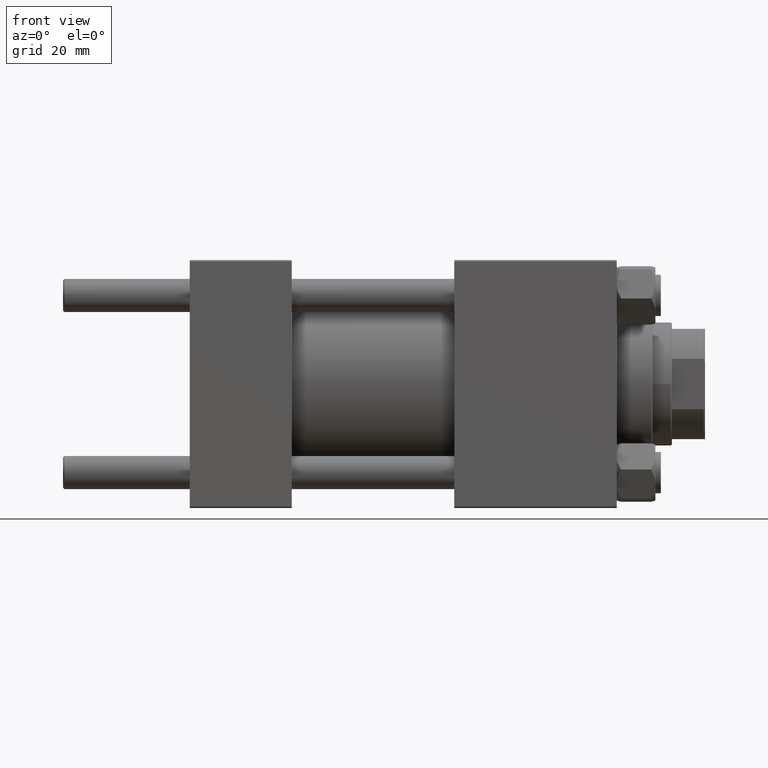
[diagram: clean part render]
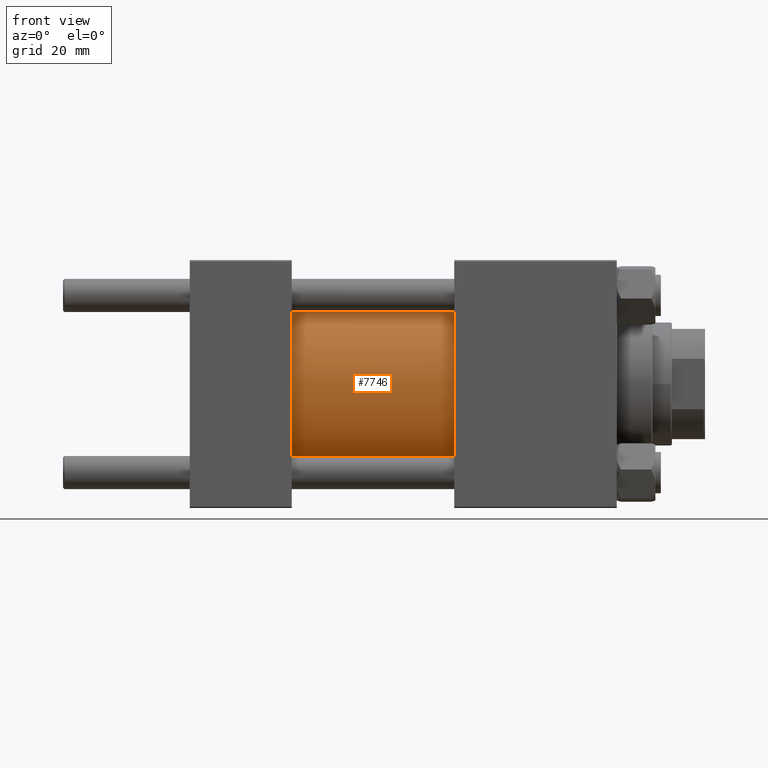
[diagram: same view with one face highlighted and labeled with its STEP entity id]
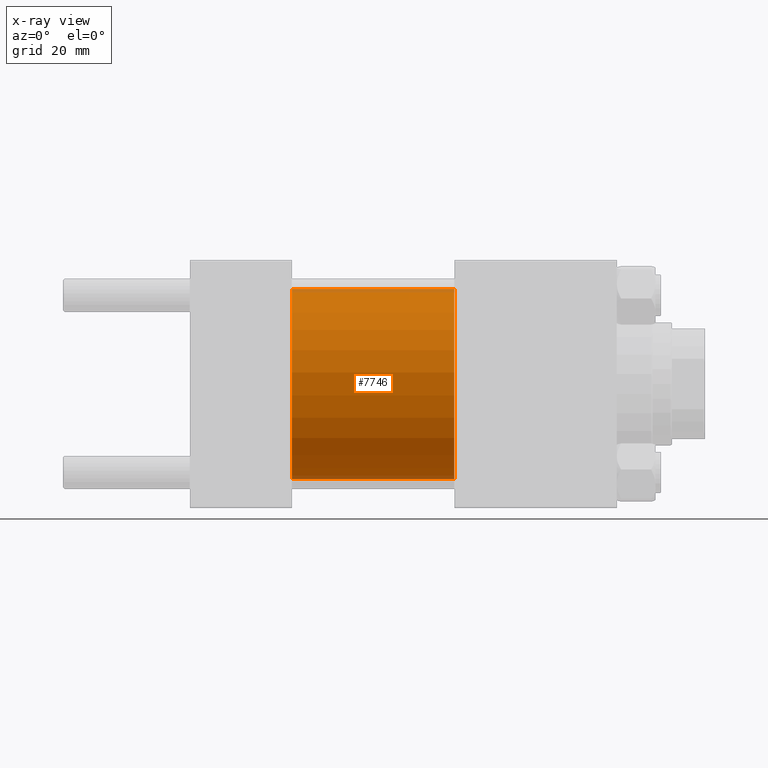
[diagram: x-ray of the same camera — body ghosted, the highlighted face saturated]
A machine part, front view. The second image highlights one B-rep face of the part: STEP entity #7746.
The next image is the same camera in x-ray: the body ghosted, the highlighted face saturated — about 4% of this face is hidden behind the body in this view.
In plain terms, the highlighted cylindrical surface (partial cylindrical patch) has radius 34.5 mm, axis along (-1, -0, -0).
Its self-contained STEP definition (entity closure, byte-faithful):
#1745 = AXIS2_PLACEMENT_3D ( 'NONE', #41243, #24439, #31986 ) ;
#2329 = CARTESIAN_POINT ( 'NONE',  ( 96.00000000000000000, 0.000000000000000000, 0.000000000000000000 ) ) ;
#3355 = VECTOR ( 'NONE', #13272, 1000.000000000000000 ) ;
#4701 = EDGE_CURVE ( 'NONE', #15768, #10659, #7326, .T. ) ;
#5261 = CYLINDRICAL_SURFACE ( 'NONE', #1745, 34.49999999999999289 ) ;
#6306 = AXIS2_PLACEMENT_3D ( 'NONE', #23471, #8111, #49010 ) ;
#6869 = EDGE_CURVE ( 'NONE', #10659, #26341, #32912, .T. ) ;
#7326 = CIRCLE ( 'NONE', #46742, 34.49999999999999289 ) ;
#7746 = ADVANCED_FACE ( 'NONE', ( #31745 ), #5261, .T. ) ;
#8111 = DIRECTION ( 'NONE',  ( 1.000000000000000000, -0.000000000000000000, 0.000000000000000000 ) ) ;
#8943 = LINE ( 'NONE', #35659, #48334 ) ;
#10659 = VERTEX_POINT ( 'NONE', #47518 ) ;
#13045 = EDGE_CURVE ( 'NONE', #44306, #26341, #47354, .T. ) ;
#13207 = EDGE_LOOP ( 'NONE', ( #28844, #32983, #14508, #28621 ) ) ;
#13272 = DIRECTION ( 'NONE',  ( -1.000000000000000000, -0.000000000000000000, -0.000000000000000000 ) ) ;
#14508 = ORIENTED_EDGE ( 'NONE', *, *, #19193, .T. ) ;
#15768 = VERTEX_POINT ( 'NONE', #19117 ) ;
#16012 = DIRECTION ( 'NONE',  ( -1.000000000000000000, -0.000000000000000000, -0.000000000000000000 ) ) ;
#16628 = CARTESIAN_POINT ( 'NONE',  ( 37.00000000000000000, 0.000000000000000000, 34.49999999999999289 ) ) ;
#19117 = CARTESIAN_POINT ( 'NONE',  ( 96.00000000000000000, 0.000000000000000000, 34.49999999999999289 ) ) ;
#19193 = EDGE_CURVE ( 'NONE', #15768, #44306, #8943, .T. ) ;
#23471 = CARTESIAN_POINT ( 'NONE',  ( 37.00000000000000000, 0.000000000000000000, 0.000000000000000000 ) ) ;
#24439 = DIRECTION ( 'NONE',  ( -1.000000000000000000, -0.000000000000000000, -0.000000000000000000 ) ) ;
#26341 = VERTEX_POINT ( 'NONE', #30202 ) ;
#28621 = ORIENTED_EDGE ( 'NONE', *, *, #13045, .T. ) ;
#28844 = ORIENTED_EDGE ( 'NONE', *, *, #6869, .F. ) ;
#30202 = CARTESIAN_POINT ( 'NONE',  ( 37.00000000000000000, 4.225031457058367344E-15, -34.49999999999999289 ) ) ;
#31745 = FACE_OUTER_BOUND ( 'NONE', #13207, .T. ) ;
#31986 = DIRECTION ( 'NONE',  ( 0.000000000000000000, 0.000000000000000000, 1.000000000000000000 ) ) ;
#32912 = LINE ( 'NONE', #47789, #3355 ) ;
#32983 = ORIENTED_EDGE ( 'NONE', *, *, #4701, .F. ) ;
#33084 = DIRECTION ( 'NONE',  ( 0.000000000000000000, 0.000000000000000000, -1.000000000000000000 ) ) ;
#35659 = CARTESIAN_POINT ( 'NONE',  ( 96.00000000000000000, 0.000000000000000000, 34.49999999999999289 ) ) ;
#36612 = DIRECTION ( 'NONE',  ( 1.000000000000000000, 0.000000000000000000, 0.000000000000000000 ) ) ;
#41243 = CARTESIAN_POINT ( 'NONE',  ( 96.00000000000000000, 0.000000000000000000, 0.000000000000000000 ) ) ;
#44306 = VERTEX_POINT ( 'NONE', #16628 ) ;
#46742 = AXIS2_PLACEMENT_3D ( 'NONE', #2329, #36612, #33084 ) ;
#47354 = CIRCLE ( 'NONE', #6306, 34.49999999999999289 ) ;
#47518 = CARTESIAN_POINT ( 'NONE',  ( 96.00000000000000000, 4.225031457058367344E-15, -34.49999999999999289 ) ) ;
#47789 = CARTESIAN_POINT ( 'NONE',  ( 96.00000000000000000, 4.225031457058367344E-15, -34.49999999999999289 ) ) ;
#48334 = VECTOR ( 'NONE', #16012, 1000.000000000000000 ) ;
#49010 = DIRECTION ( 'NONE',  ( 0.000000000000000000, 0.000000000000000000, 1.000000000000000000 ) ) ;